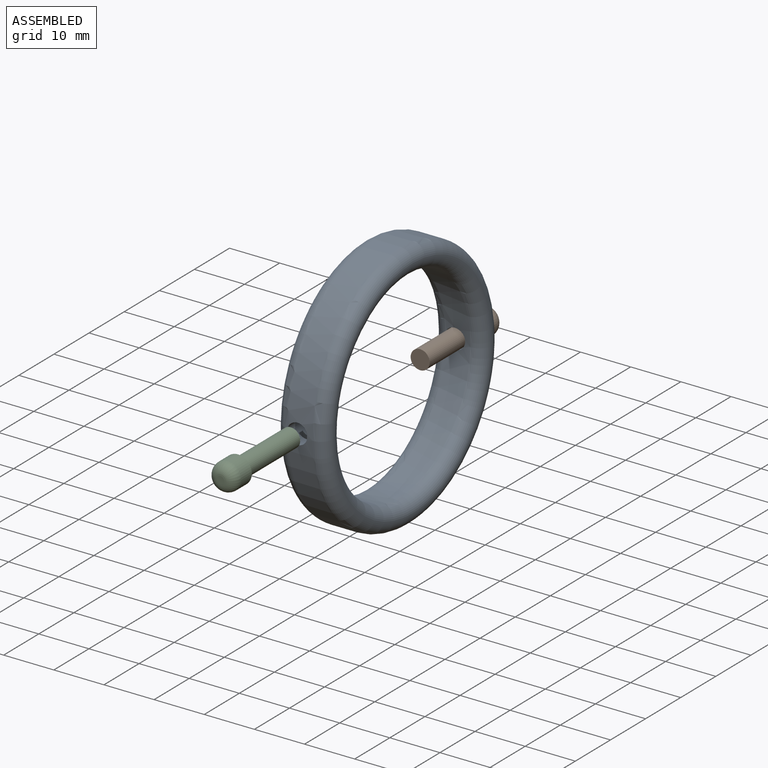
[diagram: assembled view]
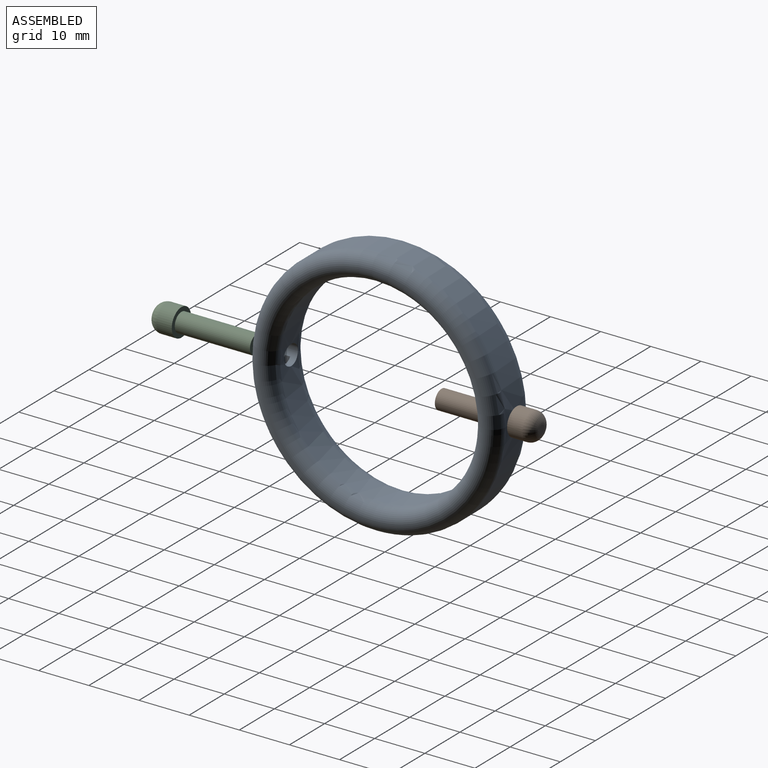
[diagram: assembled view, second angle]
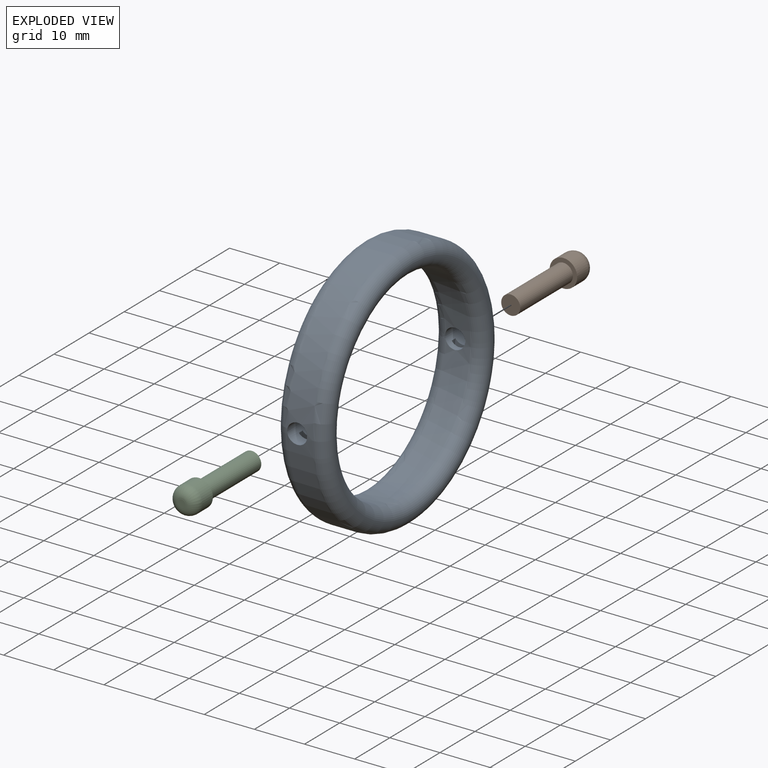
[diagram: exploded view]
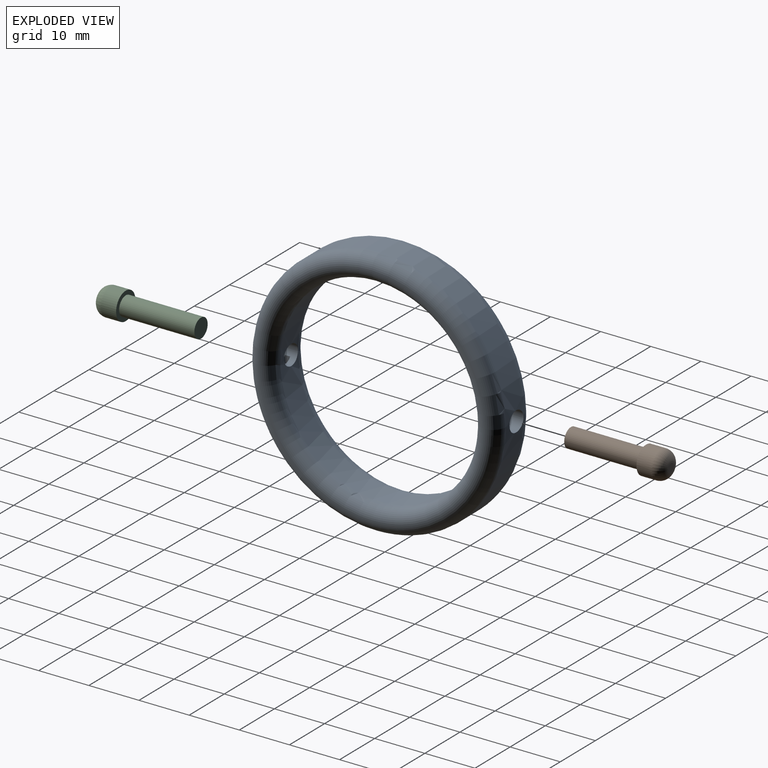
[diagram: exploded view, second angle]
ASSEMBLY  parts=3 mates=2
PART A: 14 faces, bbox 54.1x54.1x10 mm
  f0: cylinder r=21.27mm len=42.46mm, axis (0,0,1), area 189.7mm2, adj f2,f3,f4,f9
  f1: cylinder r=22.33mm len=44.59mm, axis (0,0,-1), area 199.7mm2, adj f2,f3,f4,f9
  f2: plane 44.58x20.96mm, normal (0,0,-1), area 69.8mm2, adj f0,f1,f4,f9
  f3: plane 44.59x21.08mm, normal (0,0,1), area 70.1mm2, adj f0,f1,f4,f9
  f4: cylinder r=2mm len=5mm, axis (0,-1,0), area 55.5mm2, adj f0,f1,f2,f3,f5,f6,f7,f8
  f5: cylinder r=21.27mm len=42.46mm, axis (0,0,1), area 189.7mm2, adj f4,f6,f7,f9
  f6: plane 44.59x21.08mm, normal (0,0,1), area 70.1mm2, adj f4,f5,f8,f9
  f7: plane 44.58x20.96mm, normal (0,0,-1), area 69.8mm2, adj f4,f5,f8,f9
  f8: cylinder r=22.33mm len=44.59mm, axis (0,0,-1), area 199.7mm2, adj f4,f6,f7,f9
  f9: cylinder r=2mm len=5mm, axis (0,-1,0), area 55.5mm2, adj f0,f1,f2,f3,f5,f6,f7,f8
  f10: cylinder r=25mm len=50mm, axis (0,0,-1), area 760.4mm2, adj f4,f9,f12,f13
  f11: cylinder r=20mm len=40mm, axis (0,0,1), area 603.3mm2, adj f4,f9,f12,f13
  f12: torus R=22.5mm, axis (0,0,1), area 1110.3mm2, adj f4,f9,f10,f11
  f13: torus R=22.5mm, axis (0,0,1), area 1110.3mm2, adj f10,f11
PART B: 6 faces, bbox 5.5x20x5.5 mm
  f0: cylinder r=1.9mm len=15mm, axis (0,1,0), area 179.1mm2, adj f1,f4
  f1: plane 3.8x3.8mm, normal (0,1,0), area 11.3mm2, adj f0
  f2: cylinder r=2.75mm len=5.5mm, axis (0,1,0), area 51.9mm2, adj f4,f5
  f3: plane 1.5x1.5mm, normal (0,-1,0), area 1.8mm2, adj f5
  f4: plane 5.5x5.5mm, normal (0,1,0), area 12.4mm2, adj f0,f2
  f5: torus R=0.75mm, axis (0,-1,0), area 40mm2, adj f2,f3
PART C: same geometry as B
PLACE A rot(axis=(0.71,0,0.71),180deg) t=(-21.75,6.17,29.91)mm
PLACE B rot(axis=(0.71,0,-0.71),180deg) t=(3.46,16.2,29.87)mm
PLACE C t=(-17.26,-20.66,9.15)mm
MATE slider A.f4 <-> C.f0  axis (0,1,0) through (-17.3,-18.86,29.91)mm
MATE slider B.f0 <-> A.f4  axis (0,-1,0) through (-17.3,31.2,29.91)mm
